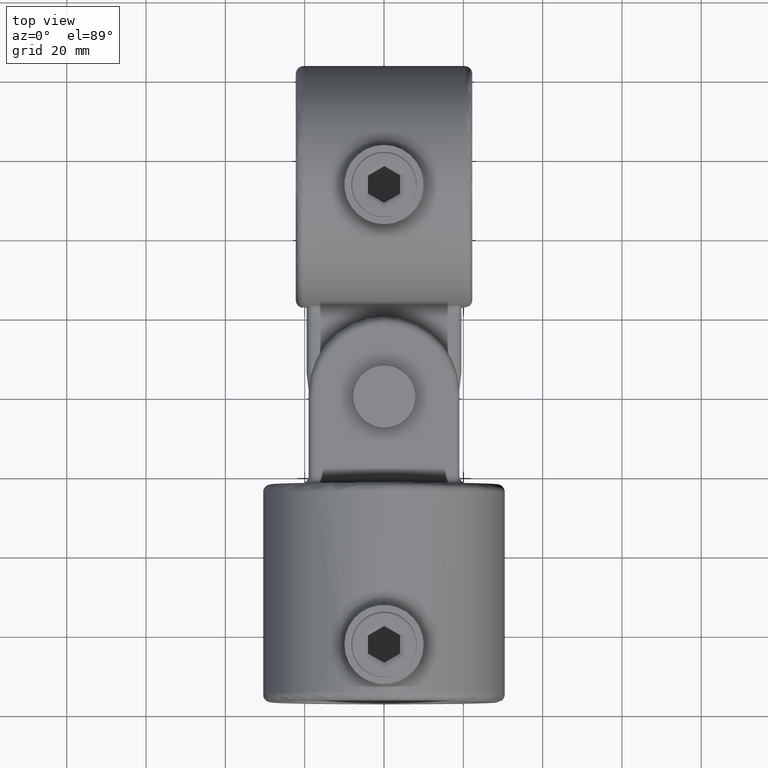
[diagram: clean part render]
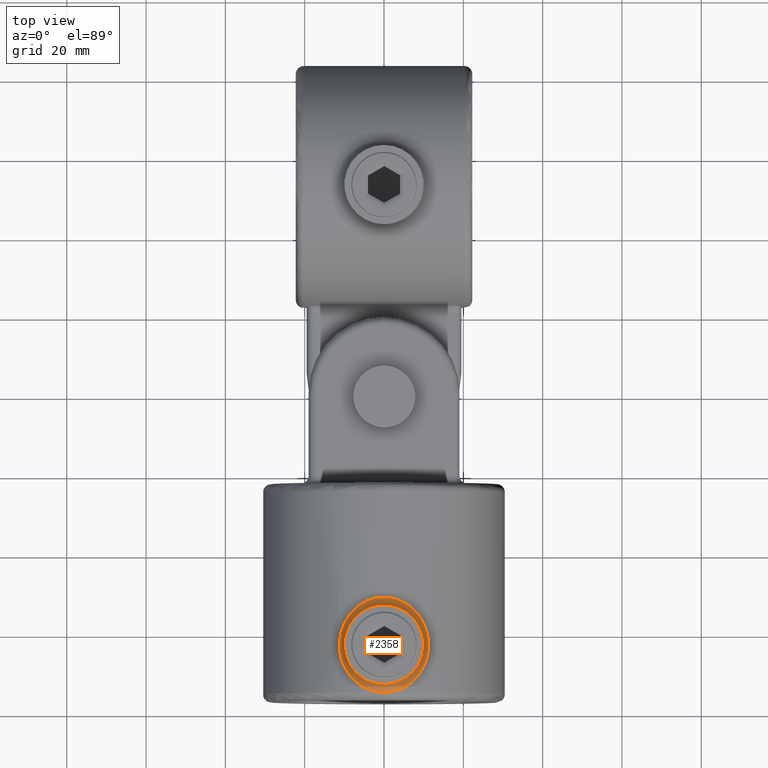
[diagram: same view with one face highlighted and labeled with its STEP entity id]
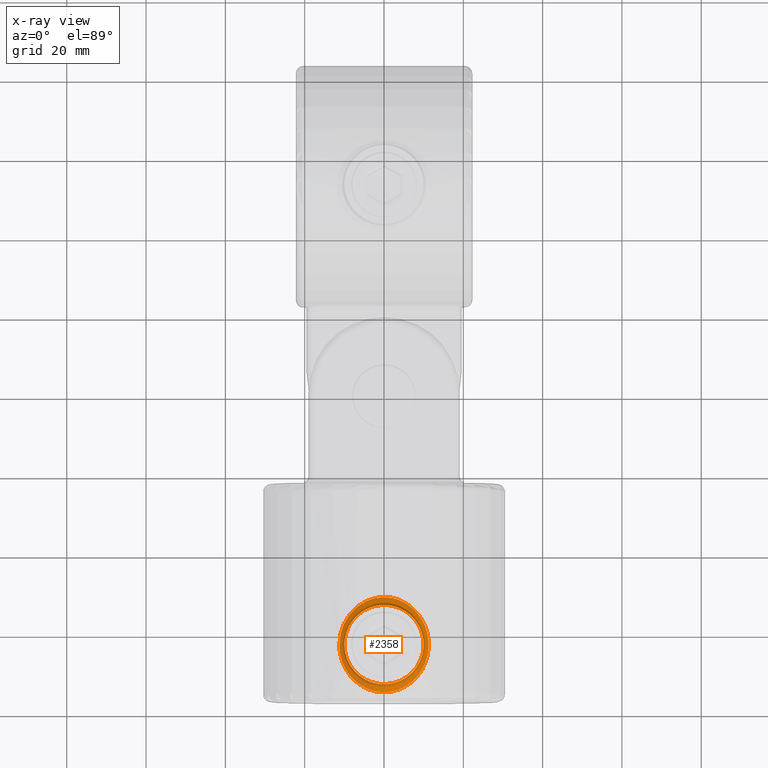
[diagram: x-ray of the same camera — body ghosted, the highlighted face saturated]
A machine part, top view. The second image highlights one B-rep face of the part: STEP entity #2358.
The next image is the same camera in x-ray: the body ghosted, the highlighted face saturated — about 0% of this face is hidden behind the body in this view.
In plain terms, the highlighted face is a freeform B-spline surface patch.
Its self-contained STEP definition (entity closure, byte-faithful):
#2 = CARTESIAN_POINT ( 'NONE',  ( -9.243968215091069140, 20.86469932400803273, 29.06616964552391735 ) ) ;
#19 = CARTESIAN_POINT ( 'NONE',  ( -9.933032982730786387, 12.67198421611785442, 30.23573659267955094 ) ) ;
#22 = CARTESIAN_POINT ( 'NONE',  ( 3.032111555076093978, 2.414852983618906990, 30.35806526818181794 ) ) ;
#35 = CARTESIAN_POINT ( 'NONE',  ( 9.824873629828857702, 19.87756647631716334, 28.87478173128807768 ) ) ;
#46 = CARTESIAN_POINT ( 'NONE',  ( 1.539353544089424597, 2.105527592974714590, 30.46355052869967395 ) ) ;
#50 = CARTESIAN_POINT ( 'NONE',  ( -10.88072185155222193, 17.11950014927325370, 28.49339085561273421 ) ) ;
#70 = CARTESIAN_POINT ( 'NONE',  ( -8.128381542641472279, 19.83402072333259269, 31.00259167786007453 ) ) ;
#93 = CARTESIAN_POINT ( 'NONE',  ( -5.853317288572460697, 5.860875669156445866, 29.95637070469016550 ) ) ;
#97 = CARTESIAN_POINT ( 'NONE',  ( -6.845712805342850871, 21.29661117872351284, 31.44593285321928988 ) ) ;
#100 = CARTESIAN_POINT ( 'NONE',  ( -2.614533402329467737, 4.342203113726298191, 32.35044701807686351 ) ) ;
#105 = CARTESIAN_POINT ( 'NONE',  ( -7.765260833497010573, 7.656510256769990974, 29.52345012723927553 ) ) ;
#114 = CARTESIAN_POINT ( 'NONE',  ( -3.245353187600716449, 4.535513310477721660, 32.26807114800728016 ) ) ;
#127 = CARTESIAN_POINT ( 'NONE',  ( 0.6042812338516254655, 23.98657952067852150, 30.49577145510413345 ) ) ;
#130 = CARTESIAN_POINT ( 'NONE',  ( -1.315883091347748168, 4.064847427296987448, 32.47102181399852583 ) ) ;
#138 = CARTESIAN_POINT ( 'NONE',  ( 2.605076708266246044, 23.67701246784753621, 32.35857618770624811 ) ) ;
#142 = CARTESIAN_POINT ( 'NONE',  ( 9.984020035899424883, 13.34471602824632441, 30.21111772675156715 ) ) ;
#153 = CARTESIAN_POINT ( 'NONE',  ( -0.7551700106236800547, 25.99914448498287101, 30.49970355649716325 ) ) ;
#156 = CARTESIAN_POINT ( 'NONE',  ( 9.868872699529433135, 12.35230418400704622, 30.26563674008294313 ) ) ;
#176 = CARTESIAN_POINT ( 'NONE',  ( 6.096056574390752658, 21.93377712714334393, 31.66755334169206293 ) ) ;
#180 = CARTESIAN_POINT ( 'NONE',  ( -6.843302424459897892, 21.29881938692922816, 31.44667997658956438 ) ) ;
#190 = CARTESIAN_POINT ( 'NONE',  ( -3.655484751139142396, 25.35711571959449628, 30.28225512550856280 ) ) ;
#204 = CARTESIAN_POINT ( 'NONE',  ( 10.89254134794235185, 17.14890022775901457, 28.48907788594209478 ) ) ;
#221 = CARTESIAN_POINT ( 'NONE',  ( 9.999737193288138926, 14.33625792644167873, 30.20360191840804731 ) ) ;
#226 = CARTESIAN_POINT ( 'NONE',  ( 6.103807043906742891, 21.92777132986375932, 31.66539131183671074 ) ) ;
#242 = CARTESIAN_POINT ( 'NONE',  ( 9.424336013752139252, 17.41549897950790537, 29.03949610354175803 ) ) ;
#261 = CARTESIAN_POINT ( 'NONE',  ( 9.909178584592577721, 15.39049317853638144, 28.87720646007744918 ) ) ;
#275 = CARTESIAN_POINT ( 'NONE',  ( 5.844398800048593579, 5.879178308581558987, 31.73598055903458004 ) ) ;
#278 = CARTESIAN_POINT ( 'NONE',  ( -0.7670867579778110068, 1.999999999999998224, 30.49999999999999289 ) ) ;
#297 = CARTESIAN_POINT ( 'NONE',  ( 5.589870289969797845, 5.696323953842715504, 30.00174678178514043 ) ) ;
#320 = CARTESIAN_POINT ( 'NONE',  ( 8.490178860390338755, 8.706416734731028839, 30.86263140759729140 ) ) ;
#333 = CARTESIAN_POINT ( 'NONE',  ( 3.030941800873076630, 4.446738308004146489, 30.36110170048718260 ) ) ;
#337 = CARTESIAN_POINT ( 'NONE',  ( 10.71134363683182400, 17.78295590648745517, 28.55868925382990753 ) ) ;
#351 = CARTESIAN_POINT ( 'NONE',  ( -0.7358301318822187964, 1.999478801592422084, 30.50018059974872742 ) ) ;
#356 = CARTESIAN_POINT ( 'NONE',  ( 0.3779548016671955835, 26.00019906655573010, 30.50006897832123087 ) ) ;
#376 = CARTESIAN_POINT ( 'NONE',  ( -5.038629552398040445, 5.350857907083879539, 30.09693372214898943 ) ) ;
#379 = CARTESIAN_POINT ( 'NONE',  ( -2.652514550686015937, 25.66948666633390630, 30.38675607796333722 ) ) ;
#395 = CARTESIAN_POINT ( 'NONE',  ( -11.26106436904438723, 13.19175005865275452, 28.34498949610054197 ) ) ;
#397 = CARTESIAN_POINT ( 'NONE',  ( -10.16881974270378919, 19.21345025795040939, 28.75635633840666827 ) ) ;
#409 = CARTESIAN_POINT ( 'NONE',  ( 2.655918393980812198, 25.66853894248058054, 30.38643598184116001 ) ) ;
#447 = CARTESIAN_POINT ( 'NONE',  ( -9.714648156356538777, 16.39989555051445436, 28.94293790424726964 ) ) ;
#474 = CARTESIAN_POINT ( 'NONE',  ( -7.932272795259867060, 20.09792152473874083, 31.07588381774887765 ) ) ;
#488 = CARTESIAN_POINT ( 'NONE',  ( -2.425938382193745912, 4.292017956559543101, 30.40902126201484279 ) ) ;
#500 = CARTESIAN_POINT ( 'NONE',  ( -9.739134296912128619, 11.70717094567973859, 30.32609237112129108 ) ) ;
#510 = CARTESIAN_POINT ( 'NONE',  ( -9.925192341616567049, 12.59809443847984944, 28.87210457215108761 ) ) ;
#515 = CARTESIAN_POINT ( 'NONE',  ( 4.453006632620951422, 22.97814129275433714, 32.06621772225852141 ) ) ;
#518 = CARTESIAN_POINT ( 'NONE',  ( 9.671286232142414008, 16.62843634803788717, 30.35770082774977041 ) ) ;
#533 = CARTESIAN_POINT ( 'NONE',  ( 3.019178305892411540, 23.55711015504564187, 30.36227173522066636 ) ) ;
#536 = CARTESIAN_POINT ( 'NONE',  ( -7.528316750415037895, 7.386310444514425200, 31.22433172470076812 ) ) ;
#549 = CARTESIAN_POINT ( 'NONE',  ( 3.233419850416193508, 23.48584657338296111, 32.27601678203924962 ) ) ;
#556 = CARTESIAN_POINT ( 'NONE',  ( -6.615820458410701654, 6.473555800180735176, 31.52053636002622738 ) ) ;
#569 = CARTESIAN_POINT ( 'NONE',  ( -1.323425284401383184, 23.93391114053046209, 32.47047710441780310 ) ) ;
#583 = CARTESIAN_POINT ( 'NONE',  ( -0.6705744629852793404, 23.99928707057250676, 32.49968411768632137 ) ) ;
#587 = CARTESIAN_POINT ( 'NONE',  ( -10.00000000000000533, 14.67042085534480123, 30.20347662107793951 ) ) ;
#599 = CARTESIAN_POINT ( 'NONE',  ( 9.015726547289684589, 18.34490367044389458, 29.16696224098524581 ) ) ;
#604 = CARTESIAN_POINT ( 'NONE',  ( 1.323011909690238852, 23.91769104178694860, 32.46363964678834435 ) ) ;
#622 = CARTESIAN_POINT ( 'NONE',  ( 9.999708843623745125, 14.35439558416219974, 28.84611742392011635 ) ) ;
#627 = CARTESIAN_POINT ( 'NONE',  ( -5.843697447757173258, 22.12144113231292408, 31.73619776136614590 ) ) ;
#642 = CARTESIAN_POINT ( 'NONE',  ( 11.24395328229990021, 13.22108662596344786, 28.35180853242880872 ) ) ;
#656 = CARTESIAN_POINT ( 'NONE',  ( 6.612349909142252180, 21.51560200003313739, 29.79702030169697480 ) ) ;
#670 = CARTESIAN_POINT ( 'NONE',  ( 9.641666268414764929, 11.25377305949032980, 28.96749256054473776 ) ) ;
#695 = CARTESIAN_POINT ( 'NONE',  ( 5.307075380255741770, 5.518272983283116773, 31.87163107662305350 ) ) ;
#700 = CARTESIAN_POINT ( 'NONE',  ( -7.578928348704146778, 5.090222142221667134, 29.54804856496079779 ) ) ;
#714 = CARTESIAN_POINT ( 'NONE',  ( 2.951271065109800418, 2.392707726962475689, 30.36554994667471874 ) ) ;
#717 = CARTESIAN_POINT ( 'NONE',  ( -10.57712353359535662, 9.862416789068833012, 28.60760787048300458 ) ) ;
#718 = EDGE_CURVE ( 'NONE', #1869, #1869, #3477, .T. ) ;
#729 = CARTESIAN_POINT ( 'NONE',  ( 8.658185364937464712, 8.985647776339853010, 30.79513573668955573 ) ) ;
#748 = CARTESIAN_POINT ( 'NONE',  ( 0.3366211951522407042, 4.000220446542505748, 32.49990232519428446 ) ) ;
#753 = CARTESIAN_POINT ( 'NONE',  ( 4.103338681587359815, 25.18237166942944683, 30.22476929305997118 ) ) ;
#768 = CARTESIAN_POINT ( 'NONE',  ( 9.750448749703682694, 7.982777331490288120, 28.90005046076233697 ) ) ;
#771 = CARTESIAN_POINT ( 'NONE',  ( 10.71218913228285352, 10.21929224433167427, 28.55838078788119816 ) ) ;
#785 = CARTESIAN_POINT ( 'NONE',  ( -3.902807240344861484, 4.784060603444623361, 30.26045133572615953 ) ) ;
#788 = CARTESIAN_POINT ( 'NONE',  ( -5.787429719565310826, 24.32485783493159559, 29.95247634929346958 ) ) ;
#799 = CARTESIAN_POINT ( 'NONE',  ( -11.26153624131425524, 13.99246478277244066, 28.34480201881053318 ) ) ;
#803 = CARTESIAN_POINT ( 'NONE',  ( 5.789137863697386699, 3.699306629790068968, 29.94738181258727749 ) ) ;
#818 = CARTESIAN_POINT ( 'NONE',  ( -5.295855884970327665, 5.511134968805895262, 31.87435581093785331 ) ) ;
#821 = CARTESIAN_POINT ( 'NONE',  ( -9.029439536706497904, 21.18168904846161738, 29.13375196157486613 ) ) ;
#840 = CARTESIAN_POINT ( 'NONE',  ( -9.999998028489436308, 13.99372065231036721, 30.20347756102761494 ) ) ;
#854 = CARTESIAN_POINT ( 'NONE',  ( -10.00000000000000178, 13.99999999999999822, 30.20347662107792530 ) ) ;
#868 = CARTESIAN_POINT ( 'NONE',  ( -7.519640387924853897, 20.60004598897471695, 31.22325956103462730 ) ) ;
#886 = CARTESIAN_POINT ( 'NONE',  ( -8.543547383195164713, 19.24547461994195530, 29.30995174042459084 ) ) ;
#890 = CARTESIAN_POINT ( 'NONE',  ( -5.306170360020612264, 5.517610849896361636, 31.87187422770790945 ) ) ;
#896 = CARTESIAN_POINT ( 'NONE',  ( -10.96821931842398712, 11.25082845005808352, 28.45969494522418231 ) ) ;
#901 = CARTESIAN_POINT ( 'NONE',  ( -7.318448435972737087, 20.82960721643040358, 29.63394174328092134 ) ) ;
#905 = CARTESIAN_POINT ( 'NONE',  ( 1.658878112089044343, 4.133079042536122572, 32.44129353512104075 ) ) ;
#910 = CARTESIAN_POINT ( 'NONE',  ( -9.999997815832156078, 13.99338199095946145, 28.84601775102658294 ) ) ;
#915 = EDGE_CURVE ( 'NONE', #4140, #4140, #1762, .T. ) ;
#917 = CARTESIAN_POINT ( 'NONE',  ( 6.571122588666621134, 23.75312316578482807, 29.78534196520226374 ) ) ;
#922 = CARTESIAN_POINT ( 'NONE',  ( 9.102496660580056798, 18.15334532493125508, 30.60986331209045375 ) ) ;
#939 = CARTESIAN_POINT ( 'NONE',  ( -6.105629327448422572, 21.92631780640063965, 31.66487375531614035 ) ) ;
#941 = CARTESIAN_POINT ( 'NONE',  ( 1.332077482115696654, 4.083513171062507219, 32.46310950476503621 ) ) ;
#957 = CARTESIAN_POINT ( 'NONE',  ( 5.580367149144492167, 22.31009088202797841, 30.00348367755407608 ) ) ;
#960 = CARTESIAN_POINT ( 'NONE',  ( 4.162126008069604310, 4.901368779502045747, 32.11604033567353866 ) ) ;
#973 = CARTESIAN_POINT ( 'NONE',  ( 0.6528650920635669097, 23.98418367810539209, 32.49297653594643975 ) ) ;
#975 = CARTESIAN_POINT ( 'NONE',  ( -6.604879153853596918, 21.51532381309690933, 31.52024382232365696 ) ) ;
#990 = CARTESIAN_POINT ( 'NONE',  ( -3.332560995477796162, 23.43647088803235690, 30.32625654769420720 ) ) ;
#1010 = CARTESIAN_POINT ( 'NONE',  ( 9.868722466718050867, 15.64872802278321018, 30.26570794393036579 ) ) ;
#1016 = CARTESIAN_POINT ( 'NONE',  ( -4.459212858328937656, 22.97437877312986743, 32.06472674210432672 ) ) ;
#1030 = CARTESIAN_POINT ( 'NONE',  ( 10.00025655206808217, 13.67955933350399889, 30.20335430575065416 ) ) ;
#1034 = CARTESIAN_POINT ( 'NONE',  ( -9.933379340573587513, 15.32680092401816196, 30.23557732068112358 ) ) ;
#1042 = CARTESIAN_POINT ( 'NONE',  ( 9.104420648648398284, 18.14913738768158424, 30.60903877074444424 ) ) ;
#1062 = CARTESIAN_POINT ( 'NONE',  ( 9.856500519366038660, 12.27462443019169491, 28.89520718866680582 ) ) ;
#1081 = CARTESIAN_POINT ( 'NONE',  ( 9.485203754702661527, 10.76621633595856586, 30.44333759508664983 ) ) ;
#1094 = CARTESIAN_POINT ( 'NONE',  ( -1.307264523227960273, 4.063839095309460525, 32.47147145059906848 ) ) ;
#1097 = CARTESIAN_POINT ( 'NONE',  ( -8.340587580369856369, 5.927624465590056957, 29.33860819879154036 ) ) ;
#1110 = CARTESIAN_POINT ( 'NONE',  ( 8.350714966581813670, 8.482306431702342664, 29.36286137955629982 ) ) ;
#1117 = CARTESIAN_POINT ( 'NONE',  ( -9.038308271229990254, 6.830894774893223165, 29.13100779426873288 ) ) ;
#1118 = ORIENTED_EDGE ( 'NONE', *, *, #915, .F. ) ;
#1137 = CARTESIAN_POINT ( 'NONE',  ( 5.853299092228011702, 5.879422340232376420, 29.95248563263556463 ) ) ;
#1141 = CARTESIAN_POINT ( 'NONE',  ( -2.651890083292779643, 2.330308292377218482, 30.38682503580911742 ) ) ;
#1154 = CARTESIAN_POINT ( 'NONE',  ( 8.531878459059099029, 8.766723368291700069, 29.31108620416283372 ) ) ;
#1157 = CARTESIAN_POINT ( 'NONE',  ( 11.17559517623976006, 12.47115895088103699, 28.37882037202822261 ) ) ;
#1172 = CARTESIAN_POINT ( 'NONE',  ( 6.103983348778923457, 6.072410578042320317, 31.66533207309560893 ) ) ;
#1174 = CARTESIAN_POINT ( 'NONE',  ( 10.17373442398051964, 8.797776059434015750, 28.75460375490738230 ) ) ;
#1190 = CARTESIAN_POINT ( 'NONE',  ( -8.538410916875612600, 8.746631334981380235, 29.31140732410387528 ) ) ;
#1193 = CARTESIAN_POINT ( 'NONE',  ( 5.798932846790121332, 24.31687779012050754, 29.95010788404846735 ) ) ;
#1211 = CARTESIAN_POINT ( 'NONE',  ( -9.999998028489436308, 13.99372065231036721, 30.20347756102761494 ) ) ;
#1213 = CARTESIAN_POINT ( 'NONE',  ( 7.000826883907540044, 4.592370185224562640, 29.68706601083024310 ) ) ;
#1225 = CARTESIAN_POINT ( 'NONE',  ( -8.667912118940449773, 8.971280242328518284, 30.79393132639754072 ) ) ;
#1227 = CARTESIAN_POINT ( 'NONE',  ( -4.105554508060962782, 25.18125088903324738, 30.22441334226354215 ) ) ;
#1263 = CARTESIAN_POINT ( 'NONE',  ( -11.18806541380962649, 15.57883902213603911, 28.37430715944625703 ) ) ;
#1294 = CARTESIAN_POINT ( 'NONE',  ( -7.302291195908765076, 20.83965363135161297, 31.29767985121476670 ) ) ;
#1297 = CARTESIAN_POINT ( 'NONE',  ( 9.983493821546606029, 14.66260686238623911, 30.21136826425483335 ) ) ;
#1305 = CARTESIAN_POINT ( 'NONE',  ( -4.997567006845190285, 3.239191238736637946, 30.08957747930015358 ) ) ;
#1313 = CARTESIAN_POINT ( 'NONE',  ( -7.709325805467396542, 22.75593341447653728, 29.51079852400500414 ) ) ;
#1317 = CARTESIAN_POINT ( 'NONE',  ( 6.604669757277896736, 6.484487477177232506, 31.52030810875761802 ) ) ;
#1328 = CARTESIAN_POINT ( 'NONE',  ( -4.764571505943934859, 22.82102916020753725, 30.14428525646801305 ) ) ;
#1332 = CARTESIAN_POINT ( 'NONE',  ( 8.962665931951347531, 18.44716342479838289, 30.66943414644754995 ) ) ;
#1340 = CARTESIAN_POINT ( 'NONE',  ( -5.027280162298201738, 22.66920343641752567, 31.94214411224343664 ) ) ;
#1343 = CARTESIAN_POINT ( 'NONE',  ( 9.104130772675061323, 9.850138758646739490, 30.60916573495806858 ) ) ;
#1354 = CARTESIAN_POINT ( 'NONE',  ( -4.001991899031012601, 25.22352092747606633, 30.23823605150816718 ) ) ;
#1357 = CARTESIAN_POINT ( 'NONE',  ( 9.673045341635811312, 11.37885649670039356, 30.35688723799461997 ) ) ;
#1375 = CARTESIAN_POINT ( 'NONE',  ( 5.014770546400169060, 24.77376955179402174, 30.09291201581788400 ) ) ;
#1378 = CARTESIAN_POINT ( 'NONE',  ( -0.6685315067394865807, 23.99958732815111873, 32.49981715465725074 ) ) ;
#1393 = CARTESIAN_POINT ( 'NONE',  ( -6.367645905428595654, 21.72377907171450317, 29.84943641236525380 ) ) ;
#1407 = CARTESIAN_POINT ( 'NONE',  ( 10.25855114796074474, 9.033970717497625813, 28.72341642561990938 ) ) ;
#1410 = CARTESIAN_POINT ( 'NONE',  ( -8.122269497224023027, 19.84247509188513447, 31.00489619376928374 ) ) ;
#1420 = CARTESIAN_POINT ( 'NONE',  ( 9.984384745095368885, 13.35090552164946232, 30.21094351821547619 ) ) ;
#1443 = CARTESIAN_POINT ( 'NONE',  ( 7.706584406929347431, 22.75873566346964694, 29.51152379901408196 ) ) ;
#1449 = CARTESIAN_POINT ( 'NONE',  ( -7.926598416882457698, 20.10523218298213521, 31.07796279004013584 ) ) ;
#1463 = CARTESIAN_POINT ( 'NONE',  ( 8.528465912464014309, 19.23875268846249753, 29.31206691994302105 ) ) ;
#1466 = CARTESIAN_POINT ( 'NONE',  ( -1.192622389734054877E-15, 1.999999999999997335, 30.49999999999999645 ) ) ;
#1483 = CARTESIAN_POINT ( 'NONE',  ( 9.021112916798246673, 9.666212897047179453, 29.16531025058173299 ) ) ;
#1503 = CARTESIAN_POINT ( 'NONE',  ( -2.566355456052150874, 2.309029872086307833, 30.39403791276410871 ) ) ;
#1510 = CARTESIAN_POINT ( 'NONE',  ( -5.129936803753779806, 3.309895335209842582, 30.06733246023922135 ) ) ;
#1527 = CARTESIAN_POINT ( 'NONE',  ( 6.874024325193174079, 4.486892693570804447, 29.71669625339867338 ) ) ;
#1528 = CARTESIAN_POINT ( 'NONE',  ( -8.582650906545444158, 6.221008199024060659, 29.26849389585848016 ) ) ;
#1543 = CARTESIAN_POINT ( 'NONE',  ( 7.438324992049118123, 4.981751542668040322, 29.58049303092772675 ) ) ;
#1559 = CARTESIAN_POINT ( 'NONE',  ( 4.681217569410002000, 3.078735364629634486, 30.14059724893686365 ) ) ;
#1564 = CARTESIAN_POINT ( 'NONE',  ( 9.835318264099527141, 8.104512378909102921, 28.87365579794516890 ) ) ;
#1583 = CARTESIAN_POINT ( 'NONE',  ( 4.455078414042734636, 5.041281391550790580, 32.05919136870942054 ) ) ;
#1586 = CARTESIAN_POINT ( 'NONE',  ( 7.561927170432106493, 5.099125343656070619, 29.54912389325469135 ) ) ;
#1601 = CARTESIAN_POINT ( 'NONE',  ( -4.143216307582364699, 4.892846466918960857, 32.11952683136517095 ) ) ;
#1605 = CARTESIAN_POINT ( 'NONE',  ( -7.016690753439630335, 23.41972362816973074, 29.68857074842919985 ) ) ;
#1620 = CARTESIAN_POINT ( 'NONE',  ( -6.110716803383021478, 6.057279028086657746, 31.66895753244996925 ) ) ;
#1622 = CARTESIAN_POINT ( 'NONE',  ( -3.026671543139946685, 25.56559137170439300, 30.35164926310239153 ) ) ;
#1635 = CARTESIAN_POINT ( 'NONE',  ( -6.366234022201572529, 6.253458304704497372, 29.85272899055560458 ) ) ;
#1641 = CARTESIAN_POINT ( 'NONE',  ( 11.26157573034706871, 13.61910751566457556, 28.34478632961044653 ) ) ;
#1658 = CARTESIAN_POINT ( 'NONE',  ( 0.3835433789889063916, 1.999999999999997113, 30.50000000000000000 ) ) ;
#1661 = CARTESIAN_POINT ( 'NONE',  ( -8.932959516955174095, 21.31750582958979123, 29.16352173646217238 ) ) ;
#1676 = CARTESIAN_POINT ( 'NONE',  ( -11.26153624131425524, 13.99246478277244066, 28.34480201881053318 ) ) ;
#1706 = CARTESIAN_POINT ( 'NONE',  ( 6.846402141936135166, 6.703946357808736600, 31.44573203978728060 ) ) ;
#1717 = CARTESIAN_POINT ( 'NONE',  ( -9.411955240448254045, 10.59948769740053187, 29.04228405467071994 ) ) ;
#1725 = CARTESIAN_POINT ( 'NONE',  ( 7.535332654316970746, 7.393847871556056717, 31.22196392659375874 ) ) ;
#1733 = CARTESIAN_POINT ( 'NONE',  ( -3.245990557664401699, 23.46426309946616229, 32.26797677329054892 ) ) ;
#1736 = CARTESIAN_POINT ( 'NONE',  ( 8.483674080620842162, 19.30400983585766639, 30.86521074971415146 ) ) ;
#1749 = CARTESIAN_POINT ( 'NONE',  ( -2.615461681360148116, 23.65754062428421989, 32.35033691420422031 ) ) ;
#1755 = CARTESIAN_POINT ( 'NONE',  ( 4.460125296728114641, 5.043808137761853772, 32.05817500894819716 ) ) ;
#1762 = B_SPLINE_CURVE_WITH_KNOTS ( 'NONE', 3,
 ( #1466, #278, #3915, #1141, #2276, #4283, #2752, #4264, #1510, #2705, #3947, #2681, #700, #1097, #1528, #1117, #1871, #2307, #3096, #717, #3491, #4297, #1908, #1924, #2327, #2035, #3230, #4795, #4807, #3640, #2018, #397, #2774, #2, #821, #5170, #4375, #4425, #1605, #788, #4833, #1227, #3166, #1622, #379, #2793, #1983, #356, #3182, #4412, #2828, #409, #2406, #3604, #753, #3199, #1193, #4041, #1967, #3986, #2436, #4761, #35, #4002, #2390, #337, #2366, #4779, #4398, #1641, #3565, #1157, #3969, #2001, #771, #1174, #1564, #2808, #3586, #4362, #1586, #1213, #3212, #5182, #803, #3624, #4021, #2425, #22, #2458, #46, #3298, #1658, #2850 ),
 .UNSPECIFIED., .T., .F.,
 ( 4, 2, 2, 2, 2, 2, 2, 2, 2, 2, 2, 2, 2, 2, 2, 2, 2, 2, 2, 2, 2, 2, 2, 2, 2, 2, 2, 2, 2, 2, 2, 2, 2, 2, 2, 2, 2, 2, 2, 2, 2, 2, 2, 2, 2, 2, 4 ),
 ( 0.05508177351297097873, 0.05737677634430404100, 0.05852427775997056519, 0.05967177917563709633, 0.06081928059130362746, 0.06196678200697015859, 0.06426178483830322086, 0.06540928625396974505, 0.06655678766963626924, 0.06885179050096933151, 0.06999929191663585570, 0.07114679333230237990, 0.07344179616363544216, 0.07573679899496849055, 0.07688430041063501474, 0.07803180182630153894, 0.08032680465763458733, 0.08147430607330112540, 0.08262180748896766347, 0.08491681032030073961, 0.08721181315163381575, 0.08835931456730033995, 0.08950681598296689190, 0.09180181881429995416, 0.09294932022996649224, 0.09409682164563303031, 0.09524432306129956838, 0.09639182447696612033, 0.09868682730829918259, 0.1009818301396322587, 0.1032768329709653349, 0.1044243343866318730, 0.1055718358022984110, 0.1078668386336314733, 0.1101618414649645494, 0.1113093428806311014, 0.1124568442962976256, 0.1147518471276307156, 0.1170468499589638056, 0.1193418527902968818, 0.1204893542059634060, 0.1216368556216299579, 0.1227843570372964821, 0.1239318584529630340, 0.1262268612842961102, 0.1273743626999626621, 0.1285218641156291863 ),
 .UNSPECIFIED. ) ;
#1770 = CARTESIAN_POINT ( 'NONE',  ( 1.313445985264208415, 23.91892212845602472, 32.46418175993299116 ) ) ;
#1777 = CARTESIAN_POINT ( 'NONE',  ( -4.155701816738133658, 4.898536392276135132, 32.11720217377955322 ) ) ;
#1788 = CARTESIAN_POINT ( 'NONE',  ( 5.660269043759444507, 24.40328564793344057, 29.97659664787772371 ) ) ;
#1801 = CARTESIAN_POINT ( 'NONE',  ( -4.455068466075069900, 22.97643997154993301, 32.06556023329525829 ) ) ;
#1822 = CARTESIAN_POINT ( 'NONE',  ( 10.10001557170453523, 8.677592054301840108, 28.77974726967791597 ) ) ;
#1825 = CARTESIAN_POINT ( 'NONE',  ( -7.298404168031843220, 20.84374525502578734, 31.29897703565869804 ) ) ;
#1837 = CARTESIAN_POINT ( 'NONE',  ( 9.480028556556725050, 17.24843411576082630, 30.44565650939712143 ) ) ;
#1840 = CARTESIAN_POINT ( 'NONE',  ( 5.843744440065966828, 22.12129484220157494, 31.73615485409790082 ) ) ;
#1853 = CARTESIAN_POINT ( 'NONE',  ( 9.637430076023147052, 16.76189382709931053, 28.96890246477924080 ) ) ;
#1864 = CARTESIAN_POINT ( 'NONE',  ( 9.676172925699452421, 11.39085019812120869, 30.35544465474401932 ) ) ;
#1869 = VERTEX_POINT ( 'NONE', #854 ) ;
#1871 = CARTESIAN_POINT ( 'NONE',  ( -9.250034192547653689, 7.144689301434998363, 29.06423092442859257 ) ) ;
#1886 = CARTESIAN_POINT ( 'NONE',  ( 8.867760787886389551, 9.360025726551462810, 29.21209619002679148 ) ) ;
#1905 = CARTESIAN_POINT ( 'NONE',  ( 6.847699832646788387, 6.705110407919874227, 31.44533407933957392 ) ) ;
#1908 = CARTESIAN_POINT ( 'NONE',  ( -10.98703238002726756, 11.33907765140012636, 28.45242499477747344 ) ) ;
#1920 = CARTESIAN_POINT ( 'NONE',  ( 7.538985233259818841, 7.397778382440552747, 31.22073015784426175 ) ) ;
#1924 = CARTESIAN_POINT ( 'NONE',  ( -11.19189644310773879, 12.46404716867331253, 28.37274975076568140 ) ) ;
#1942 = CARTESIAN_POINT ( 'NONE',  ( 3.655130944769545032, 2.622197403837508656, 30.28807718551444950 ) ) ;
#1964 = CARTESIAN_POINT ( 'NONE',  ( 5.976583351327862559, 3.821927579968514621, 29.91029993364734807 ) ) ;
#1967 = CARTESIAN_POINT ( 'NONE',  ( 7.583850922601549804, 22.90494306336260522, 29.54677012747194098 ) ) ;
#1980 = CARTESIAN_POINT ( 'NONE',  ( 0.7545481351892033839, 2.020336009224877660, 30.49293869841714510 ) ) ;
#1983 = CARTESIAN_POINT ( 'NONE',  ( -0.7724875422416159765, 25.99959753282132269, 30.49986054156486048 ) ) ;
#1998 = CARTESIAN_POINT ( 'NONE',  ( -9.761402570837670822, 7.965536290714452683, 28.89892016741031355 ) ) ;
#2001 = CARTESIAN_POINT ( 'NONE',  ( 10.91622459963183189, 10.95225648255365769, 28.47995743206094232 ) ) ;
#2015 = CARTESIAN_POINT ( 'NONE',  ( -3.540658850745326713, 4.642103775465039384, 32.22314648948603377 ) ) ;
#2018 = CARTESIAN_POINT ( 'NONE',  ( -10.57467990496024690, 18.14458803361595685, 28.60851055390485698 ) ) ;
#2033 = CARTESIAN_POINT ( 'NONE',  ( -4.190174285556481415, 4.910497041892342374, 30.22318025817022047 ) ) ;
#2035 = CARTESIAN_POINT ( 'NONE',  ( -11.26143366233199927, 14.77657150884971315, 28.34484277397891105 ) ) ;
#2080 = CARTESIAN_POINT ( 'NONE',  ( -10.66387996175693686, 17.87760661032992715, 28.57525318562899841 ) ) ;
#2093 = EDGE_LOOP ( 'NONE', ( #3542 ) ) ;
#2096 = CARTESIAN_POINT ( 'NONE',  ( -9.469292315847052777, 17.23133884198020738, 30.44904027961508675 ) ) ;
#2100 = CARTESIAN_POINT ( 'NONE',  ( 7.944190614601239986, 7.891963555208854508, 31.07374604932628515 ) ) ;
#2104 = CARTESIAN_POINT ( 'NONE',  ( -7.319932213741031646, 7.149354453370440510, 29.63671885948299689 ) ) ;
#2108 = CARTESIAN_POINT ( 'NONE',  ( -9.291518904385116073, 17.71719374926580670, 29.08091840842208242 ) ) ;
#2111 = CARTESIAN_POINT ( 'NONE',  ( -10.00000000000000178, 13.32957914465518456, 30.20347662107792175 ) ) ;
#2122 = CARTESIAN_POINT ( 'NONE',  ( -3.640423276086067528, 2.637407173710236918, 30.28406652417214673 ) ) ;
#2128 = CARTESIAN_POINT ( 'NONE',  ( 0.3192113434047839093, 24.00034785023867556, 32.50015412428268746 ) ) ;
#2132 = CARTESIAN_POINT ( 'NONE',  ( 7.941245788260929750, 20.11208641224245497, 31.07485423606355113 ) ) ;
#2136 = CARTESIAN_POINT ( 'NONE',  ( -8.873441179763728925, 9.332320275098204831, 29.21132673765307430 ) ) ;
#2145 = CARTESIAN_POINT ( 'NONE',  ( 0.2956429167920656687, 24.00029647939737387, 30.50009326624519801 ) ) ;
#2148 = CARTESIAN_POINT ( 'NONE',  ( -3.553458559826015772, 4.646956128833685362, 32.22111563649053068 ) ) ;
#2157 = CARTESIAN_POINT ( 'NONE',  ( -5.661490890710872748, 24.40304412398916867, 29.97647370564223124 ) ) ;
#2159 = CARTESIAN_POINT ( 'NONE',  ( -0.6599121890357914078, 3.999829336728657925, 32.50007561695498026 ) ) ;
#2176 = CARTESIAN_POINT ( 'NONE',  ( 5.835013227685628578, 22.12760263816786122, 31.73847914344983678 ) ) ;
#2182 = CARTESIAN_POINT ( 'NONE',  ( 6.606596212816284286, 21.51391410442366947, 31.51974724648361814 ) ) ;
#2196 = CARTESIAN_POINT ( 'NONE',  ( -6.579917131902529803, 23.74652548753785553, 29.78342751044549175 ) ) ;
#2202 = CARTESIAN_POINT ( 'NONE',  ( 5.037571291151973440, 22.66267807699490433, 31.93965076670681569 ) ) ;
#2214 = CARTESIAN_POINT ( 'NONE',  ( 9.555351337983704951, 20.36244285013862410, 28.96534589885368405 ) ) ;
#2217 = CARTESIAN_POINT ( 'NONE',  ( -9.464465942595168713, 17.24549678703396083, 30.45120409952757967 ) ) ;
#2232 = CARTESIAN_POINT ( 'NONE',  ( 7.941096156139415996, 20.11247593119090027, 31.07492688144650117 ) ) ;
#2254 = CARTESIAN_POINT ( 'NONE',  ( 8.655016255857095331, 19.01973131539547879, 30.79641502561089439 ) ) ;
#2258 = CARTESIAN_POINT ( 'NONE',  ( -9.738914675341320049, 16.29382811046269808, 30.32619432085260414 ) ) ;
#2273 = CARTESIAN_POINT ( 'NONE',  ( 6.600880206728858113, 21.51898302683087394, 31.52148389406428208 ) ) ;
#2276 = CARTESIAN_POINT ( 'NONE',  ( -3.026050870594106268, 2.434238432205750424, 30.35170686832319120 ) ) ;
#2287 = CARTESIAN_POINT ( 'NONE',  ( 8.480827181672335513, 21.93340054238463210, 29.30207315119892186 ) ) ;
#2300 = CARTESIAN_POINT ( 'NONE',  ( -2.278867549798263337, 4.257524893289470036, 32.38708957920881204 ) ) ;
#2307 = CARTESIAN_POINT ( 'NONE',  ( -9.839138301364332762, 8.111895203841827495, 28.87233909218083383 ) ) ;
#2323 = CARTESIAN_POINT ( 'NONE',  ( 1.865644565191857396, 2.159279013290680727, 30.44504929331381504 ) ) ;
#2327 = CARTESIAN_POINT ( 'NONE',  ( -11.26164302735372402, 13.22688354344390405, 28.34475959215640728 ) ) ;
#2345 = CARTESIAN_POINT ( 'NONE',  ( 0.3790872536175295959, 2.000264535982780867, 30.49990833599690276 ) ) ;
#2358 = ADVANCED_FACE ( 'NONE', ( #2441, #4687 ), #4265, .F. ) ;
#2364 = CARTESIAN_POINT ( 'NONE',  ( 4.156818880006087902, 4.898946137065228967, 32.11702985553056777 ) ) ;
#2366 = CARTESIAN_POINT ( 'NONE',  ( 10.91596221755033014, 17.04969053029671855, 28.48006098479568493 ) ) ;
#2386 = CARTESIAN_POINT ( 'NONE',  ( -0.6051598574136466402, 3.999629809428741023, 30.50011645426948448 ) ) ;
#2390 = CARTESIAN_POINT ( 'NONE',  ( 10.30872114149041607, 18.84585204430269201, 28.70541189441056318 ) ) ;
#2403 = CARTESIAN_POINT ( 'NONE',  ( -3.987326582687846788, 2.770524530612061387, 30.24018362875870380 ) ) ;
#2406 = CARTESIAN_POINT ( 'NONE',  ( 3.022753520854180920, 25.56669538060802793, 30.35202196198194713 ) ) ;
#2420 = CARTESIAN_POINT ( 'NONE',  ( -8.975293499897071925, 9.542038081288145790, 30.66518161504536621 ) ) ;
#2425 = CARTESIAN_POINT ( 'NONE',  ( 3.752167550747611102, 2.656804377797766126, 30.27652092646351534 ) ) ;
#2436 = CARTESIAN_POINT ( 'NONE',  ( 9.047916496254591934, 21.18637905156921875, 29.13001736175059264 ) ) ;
#2441 = FACE_OUTER_BOUND ( 'NONE', #5192, .T. ) ;
#2458 = CARTESIAN_POINT ( 'NONE',  ( 1.916957069334768615, 2.168212632071715884, 30.44198141418739212 ) ) ;
#2460 = CARTESIAN_POINT ( 'NONE',  ( -9.934757539615352684, 15.31569918510533412, 30.23491746519150070 ) ) ;
#2478 = CARTESIAN_POINT ( 'NONE',  ( -9.153808137229550113, 21.00082486793115422, 29.09473988252499410 ) ) ;
#2490 = CARTESIAN_POINT ( 'NONE',  ( -9.766815143581446534, 20.02508675916110192, 28.89712253722002089 ) ) ;
#2500 = CARTESIAN_POINT ( 'NONE',  ( -9.466841878499373308, 10.76159838222277365, 30.45013723339149436 ) ) ;
#2507 = CARTESIAN_POINT ( 'NONE',  ( -6.614884349897902638, 21.51331829561642905, 29.79645968340732765 ) ) ;
#2512 = CARTESIAN_POINT ( 'NONE',  ( -6.118316857978434165, 6.063270373837529092, 31.66679886347433026 ) ) ;
#2520 = CARTESIAN_POINT ( 'NONE',  ( -5.963948473478554391, 3.813361962740521083, 29.91285699205006665 ) ) ;
#2531 = CARTESIAN_POINT ( 'NONE',  ( -8.973349204205849361, 9.538142280271097562, 30.66600392576714285 ) ) ;
#2535 = CARTESIAN_POINT ( 'NONE',  ( -5.013343766451781924, 5.341303086401500089, 31.94026640188621968 ) ) ;
#2541 = CARTESIAN_POINT ( 'NONE',  ( 1.639450088948747775, 23.87015461609153277, 32.44271180085620188 ) ) ;
#2546 = CARTESIAN_POINT ( 'NONE',  ( 6.847880192300171309, 21.29457581640100017, 31.44525236267082491 ) ) ;
#2556 = CARTESIAN_POINT ( 'NONE',  ( 1.521541031567046343, 23.88903999692789526, 30.46519627894952364 ) ) ;
#2559 = CARTESIAN_POINT ( 'NONE',  ( 5.846492498496490775, 5.880716970900487617, 31.73541619692676363 ) ) ;
#2578 = CARTESIAN_POINT ( 'NONE',  ( -4.201061370413349039, 23.09996448539473590, 30.22586466515167913 ) ) ;
#2584 = CARTESIAN_POINT ( 'NONE',  ( 5.033486903033499438, 5.353029436113183159, 31.93568963022464047 ) ) ;
#2597 = CARTESIAN_POINT ( 'NONE',  ( -3.037767032717782367, 23.53498459327544623, 30.35612452281572615 ) ) ;
#2600 = CARTESIAN_POINT ( 'NONE',  ( 1.649941697202754964, 23.86843297616704618, 32.44195629821442850 ) ) ;
#2612 = CARTESIAN_POINT ( 'NONE',  ( -1.223070610848955075, 23.94457938136078923, 30.48245406069612784 ) ) ;
#2625 = CARTESIAN_POINT ( 'NONE',  ( 8.942895979296872966, 21.33497111761386833, 29.16262368912753544 ) ) ;
#2643 = CARTESIAN_POINT ( 'NONE',  ( 8.345077115314948557, 19.52629484998595188, 29.36445454911894970 ) ) ;
#2663 = CARTESIAN_POINT ( 'NONE',  ( 9.983345221015714088, 14.66430269393021213, 30.21143881810534282 ) ) ;
#2666 = CARTESIAN_POINT ( 'NONE',  ( -10.00000000000000355, 13.99999999999999467, 30.20347662107793241 ) ) ;
#2678 = CARTESIAN_POINT ( 'NONE',  ( 10.25297833053340923, 18.97896486521551651, 28.72540561579189244 ) ) ;
#2681 = CARTESIAN_POINT ( 'NONE',  ( -7.021466357183424378, 4.584672624921902084, 29.68736401327926444 ) ) ;
#2699 = CARTESIAN_POINT ( 'NONE',  ( 8.964574740259445562, 18.44335555568253682, 30.66863210612551782 ) ) ;
#2705 = CARTESIAN_POINT ( 'NONE',  ( -5.784727487260367340, 3.696432726108585864, 29.94824971151399495 ) ) ;
#2719 = CARTESIAN_POINT ( 'NONE',  ( 8.951767422000143526, 6.677594597399026277, 29.15987162857530279 ) ) ;
#2735 = CARTESIAN_POINT ( 'NONE',  ( 0.6700222512093545468, 4.016946674145605023, 32.49247566211145966 ) ) ;
#2750 = CARTESIAN_POINT ( 'NONE',  ( 7.711563503789883534, 5.246132489632051588, 29.51023659778580210 ) ) ;
#2752 = CARTESIAN_POINT ( 'NONE',  ( -4.104586597752462929, 2.818307035435443364, 30.22455565091248886 ) ) ;
#2769 = CARTESIAN_POINT ( 'NONE',  ( 6.616906632828768231, 6.488317738543607049, 29.79603805134776451 ) ) ;
#2774 = CARTESIAN_POINT ( 'NONE',  ( -9.836646768329295298, 19.89331587946755775, 28.87322367265352696 ) ) ;
#2790 = CARTESIAN_POINT ( 'NONE',  ( -6.610300974207665270, 6.468511551574398055, 31.52224497254129432 ) ) ;
#2793 = CARTESIAN_POINT ( 'NONE',  ( -1.530046113451919876, 25.91657769210475593, 30.47083970657329033 ) ) ;
#2807 = CARTESIAN_POINT ( 'NONE',  ( -10.66112039232903008, 10.11391805870893279, 28.57628263455623241 ) ) ;
#2808 = CARTESIAN_POINT ( 'NONE',  ( 9.047786223290401608, 6.813758281663115035, 29.13003688552382897 ) ) ;
#2822 = CARTESIAN_POINT ( 'NONE',  ( -3.320033721605303523, 4.559110297479814555, 30.32758826533425278 ) ) ;
#2828 = CARTESIAN_POINT ( 'NONE',  ( 1.911303686990879269, 25.83284641643756885, 30.44234406891347788 ) ) ;
#2850 = CARTESIAN_POINT ( 'NONE',  ( -1.192622389734054877E-15, 1.999999999999997335, 30.49999999999999645 ) ) ;
#2853 = CARTESIAN_POINT ( 'NONE',  ( 0.000000000000000000, 2.000000000000001776, 30.50000000000000000 ) ) ;
#2867 = CARTESIAN_POINT ( 'NONE',  ( -10.00041702575146019, 14.66098292241905732, 30.20327779014759528 ) ) ;
#2882 = CARTESIAN_POINT ( 'NONE',  ( -9.661843174113267096, 16.59958345768911059, 30.36180992826545122 ) ) ;
#2902 = CARTESIAN_POINT ( 'NONE',  ( -9.414641987812444768, 17.39316526209633906, 29.04141919045093445 ) ) ;
#2913 = CARTESIAN_POINT ( 'NONE',  ( -9.354013013565966261, 10.44897620234198676, 30.50048322408892076 ) ) ;
#2920 = CARTESIAN_POINT ( 'NONE',  ( -8.979895809978314603, 18.44851922962542545, 30.66322815202508423 ) ) ;
#2924 = CARTESIAN_POINT ( 'NONE',  ( -7.945799578544582076, 7.894045453117306543, 31.07315217005147190 ) ) ;
#2932 = CARTESIAN_POINT ( 'NONE',  ( -11.18612329741005595, 12.40638105933967239, 28.37507587909169970 ) ) ;
#2940 = CARTESIAN_POINT ( 'NONE',  ( 9.480999725888500151, 10.75395225057885540, 30.44523232052593187 ) ) ;
#2953 = CARTESIAN_POINT ( 'NONE',  ( -6.606483606716607504, 21.51396019462751852, 31.51976952165906454 ) ) ;
#2957 = CARTESIAN_POINT ( 'NONE',  ( -10.00000000000000355, 13.99999999999999467, 30.20347662107793241 ) ) ;
#2970 = CARTESIAN_POINT ( 'NONE',  ( -5.588225518226451527, 22.30492075177141231, 30.00207545868484260 ) ) ;
#2987 = CARTESIAN_POINT ( 'NONE',  ( -2.438197141346115426, 23.70493796420268140, 30.40808317787050896 ) ) ;
#2990 = CARTESIAN_POINT ( 'NONE',  ( 9.918639406753971599, 12.68446000453588596, 30.24211355031132697 ) ) ;
#3000 = CARTESIAN_POINT ( 'NONE',  ( 7.433606632670157310, 23.02277963207282596, 29.58170026963786015 ) ) ;
#3003 = CARTESIAN_POINT ( 'NONE',  ( -9.351785023166955924, 17.55682017554366325, 30.50146622436773924 ) ) ;
#3021 = CARTESIAN_POINT ( 'NONE',  ( 9.672338628117399750, 16.62408352304054304, 30.35721414055433343 ) ) ;
#3026 = CARTESIAN_POINT ( 'NONE',  ( -1.323432631844460028, 23.93402501100975499, 32.47052500719338752 ) ) ;
#3042 = CARTESIAN_POINT ( 'NONE',  ( 11.24278261821094560, 14.79716323272723066, 28.35227335232371360 ) ) ;
#3044 = CARTESIAN_POINT ( 'NONE',  ( 2.617710640622799456, 23.67371175087662039, 32.35714969931480312 ) ) ;
#3058 = CARTESIAN_POINT ( 'NONE',  ( 7.760378159800580100, 20.34969525203679197, 29.52474030924019033 ) ) ;
#3062 = CARTESIAN_POINT ( 'NONE',  ( -9.658212025451899052, 16.61310264716253826, 30.36347660962142569 ) ) ;
#3073 = CARTESIAN_POINT ( 'NONE',  ( 9.911091664239387811, 12.62292826631173526, 28.87655283457011279 ) ) ;
#3091 = CARTESIAN_POINT ( 'NONE',  ( 10.89685935680037865, 10.86902023765935077, 28.48741729156207825 ) ) ;
#3096 = CARTESIAN_POINT ( 'NONE',  ( -10.17089269066772772, 8.790884801295870687, 28.75562593893513608 ) ) ;
#3111 = CARTESIAN_POINT ( 'NONE',  ( 1.537605345601460227, 4.113441723882035994, 30.46442129354246475 ) ) ;
#3129 = CARTESIAN_POINT ( 'NONE',  ( 4.207171349428995732, 4.918343562289845039, 30.22088612919464623 ) ) ;
#3145 = CARTESIAN_POINT ( 'NONE',  ( -2.930806996749743654, 2.406762046286893497, 30.36095744895664694 ) ) ;
#3162 = CARTESIAN_POINT ( 'NONE',  ( 6.605070006695790141, 6.484792952156716694, 31.52019749217022948 ) ) ;
#3166 = CARTESIAN_POINT ( 'NONE',  ( -3.752499628723214631, 25.32148046753423287, 30.27048232448350618 ) ) ;
#3179 = CARTESIAN_POINT ( 'NONE',  ( 0.3117605958420758272, 4.000187886910938850, 30.49994089467782743 ) ) ;
#3182 = CARTESIAN_POINT ( 'NONE',  ( 0.7665150563471406775, 25.97921660147965639, 30.49278177436089621 ) ) ;
#3197 = CARTESIAN_POINT ( 'NONE',  ( -7.945657755511750686, 7.893671664973607172, 31.07322139844053766 ) ) ;
#3199 = CARTESIAN_POINT ( 'NONE',  ( 5.148716937592596743, 24.70297726480269773, 30.07053345909573494 ) ) ;
#3210 = CARTESIAN_POINT ( 'NONE',  ( -9.999579031227410653, 13.32645838220167178, 30.20367733190763815 ) ) ;
#3212 = CARTESIAN_POINT ( 'NONE',  ( 6.709174928523376380, 4.354062510185396917, 29.75454535387024890 ) ) ;
#3228 = CARTESIAN_POINT ( 'NONE',  ( -4.757484561273121138, 5.193632081323959149, 30.14149936941000618 ) ) ;
#3230 = CARTESIAN_POINT ( 'NONE',  ( -11.19156694264659890, 15.53930802058691008, 28.37288248665516832 ) ) ;
#3243 = CARTESIAN_POINT ( 'NONE',  ( -9.999997815832156078, 13.99338199095946145, 28.84601775102658294 ) ) ;
#3267 = CARTESIAN_POINT ( 'NONE',  ( -9.626197035887068765, 16.73392924404015503, 28.97241983451193192 ) ) ;
#3287 = CARTESIAN_POINT ( 'NONE',  ( -9.741952814342493383, 16.28078348211358772, 30.32478716987294121 ) ) ;
#3298 = CARTESIAN_POINT ( 'NONE',  ( 0.7717380229071181263, 2.021152333197081763, 30.49265387880065958 ) ) ;
#3301 = CARTESIAN_POINT ( 'NONE',  ( -8.468271944723621658, 21.92005518686636023, 29.30182820362696461 ) ) ;
#3304 = CARTESIAN_POINT ( 'NONE',  ( 10.00013054100390342, 13.67451352065311276, 30.20341438353134578 ) ) ;
#3310 = CARTESIAN_POINT ( 'NONE',  ( -9.623403580318045769, 11.25637202840225903, 28.97334200718209729 ) ) ;
#3313 = CARTESIAN_POINT ( 'NONE',  ( -7.439916923275657901, 23.01675223365232981, 29.58009139701342605 ) ) ;
#3317 = CARTESIAN_POINT ( 'NONE',  ( 0.6686644656100368955, 4.016812669328450269, 32.49253478877115953 ) ) ;
#3327 = CARTESIAN_POINT ( 'NONE',  ( -9.999533601512473169, 13.29012462727314414, 28.84617786881441148 ) ) ;
#3332 = CARTESIAN_POINT ( 'NONE',  ( 1.218007032805188183, 23.93074916449625889, 30.47825989207191455 ) ) ;
#3337 = CARTESIAN_POINT ( 'NONE',  ( 9.478367709710596500, 17.25321947238622045, 30.44640338974316762 ) ) ;
#3350 = CARTESIAN_POINT ( 'NONE',  ( 5.026195189041652078, 22.66940470658351714, 31.94227511618797521 ) ) ;
#3353 = CARTESIAN_POINT ( 'NONE',  ( -8.666217386801367439, 8.968589852168840082, 30.79460102152647494 ) ) ;
#3364 = CARTESIAN_POINT ( 'NONE',  ( -5.854975518051143801, 22.11936595327533794, 29.95216395582471591 ) ) ;
#3366 = CARTESIAN_POINT ( 'NONE',  ( -9.933270860256049772, 12.67284600769582070, 30.23562708968100310 ) ) ;
#3380 = CARTESIAN_POINT ( 'NONE',  ( 0.7352265344306124772, 25.98102041350318459, 30.49340874923796818 ) ) ;
#3387 = CARTESIAN_POINT ( 'NONE',  ( -3.250221835099377454, 23.46282864703511351, 32.26736992313716001 ) ) ;
#3398 = CARTESIAN_POINT ( 'NONE',  ( 2.933717154555080420, 25.61241496158037734, 30.36727919132543008 ) ) ;
#3415 = CARTESIAN_POINT ( 'NONE',  ( 9.981508761080933212, 14.70043054821609196, 28.85241402446630588 ) ) ;
#3419 = CARTESIAN_POINT ( 'NONE',  ( -2.294821116327440791, 23.73873080830646032, 32.38546657807028595 ) ) ;
#3431 = CARTESIAN_POINT ( 'NONE',  ( 10.00028422304532683, 13.66227958770242701, 28.84591896285659729 ) ) ;
#3449 = CARTESIAN_POINT ( 'NONE',  ( 8.863404054520543696, 18.64820498886738775, 29.21340444327184116 ) ) ;
#3455 = CARTESIAN_POINT ( 'NONE',  ( -2.618792426572118970, 23.65665543586565889, 32.34995536272301564 ) ) ;
#3470 = CARTESIAN_POINT ( 'NONE',  ( 11.11566305288160272, 12.03445250083056983, 28.40243223460224087 ) ) ;
#3477 = B_SPLINE_CURVE_WITH_KNOTS ( 'NONE', 3,
 ( #2957, #2111, #3366, #500, #4116, #4922, #4909, #2531, #3353, #2924, #536, #556, #2512, #890, #4534, #3736, #1777, #2148, #114, #100, #4161, #130, #2159, #4151, #3317, #941, #905, #3778, #4565, #960, #1755, #2584, #4962, #2559, #3727, #1317, #1706, #1725, #2100, #3752, #4980, #4516, #1343, #2940, #1357, #156, #2990, #142, #3304, #3709, #1297, #4102, #4496, #518, #3337, #922, #1332, #4132, #1736, #2132, #4939, #2546, #2182, #226, #1840, #2202, #4213, #4993, #3044, #2600, #604, #4618, #3809, #1378, #3026, #3419, #3455, #3387, #4640, #1016, #3827, #627, #4601, #975, #180, #1825, #5062, #1449, #1410, #5047, #3795, #3003, #2217, #3062, #2258, #1034, #587, #2666 ),
 .UNSPECIFIED., .T., .F.,
 ( 4, 2, 2, 2, 2, 2, 2, 2, 2, 2, 2, 2, 2, 2, 2, 2, 2, 2, 2, 2, 2, 2, 2, 2, 2, 2, 2, 2, 2, 2, 2, 2, 2, 2, 2, 2, 2, 2, 2, 2, 2, 2, 2, 2, 2, 2, 2, 2, 4 ),
 ( 0.000000000000000000, 0.002011262444372475654, 0.003016893666558712397, 0.004022524888744949574, 0.006033787333117423060, 0.008045049777489897413, 0.01005631222186236656, 0.01106194344404860287, 0.01206757466623483745, 0.01307320588842107549, 0.01407883711060731007, 0.01609009955497978095, 0.01709573077716601899, 0.01810136199935225357, 0.02011262444372472619, 0.02111825566591095729, 0.02212388688809719534, 0.02312951811028342991, 0.02413514933246966102, 0.02614641177684214057, 0.02715204299902837862, 0.02815767422121461319, 0.03016893666558709275, 0.03117456788777332732, 0.03218019910995956190, 0.03318583033214580341, 0.03419146155433204493, 0.03620272399870453489, 0.03720835522089077640, 0.03821398644307701098, 0.04022524888744948707, 0.04123088010963572164, 0.04223651133182196316, 0.04424777377619443230, 0.04625903622056690145, 0.04726466744275312909, 0.04827029866493935673, 0.05028156110931181894, 0.05128719233149806045, 0.05229282355368428808, 0.05430408599805675030, 0.05530971722024297793, 0.05631534844242920557, 0.05732097966461544014, 0.05832661088680166778, 0.06033787333117414386, 0.06134350455336037844, 0.06234913577554661301, 0.06436039821991906829 ),
 .UNSPECIFIED. ) ;
#3486 = CARTESIAN_POINT ( 'NONE',  ( 9.430009321556495294, 10.59972222446766565, 29.03766855154930582 ) ) ;
#3491 = CARTESIAN_POINT ( 'NONE',  ( -10.69733952115617903, 10.22970686415382957, 28.56271853165841890 ) ) ;
#3503 = CARTESIAN_POINT ( 'NONE',  ( -1.208029010835562245, 4.053502991713401116, 30.48305651564222885 ) ) ;
#3525 = CARTESIAN_POINT ( 'NONE',  ( 1.234222608118043185, 4.071235031436408747, 30.47763849952930570 ) ) ;
#3542 = ORIENTED_EDGE ( 'NONE', *, *, #718, .F. ) ;
#3545 = CARTESIAN_POINT ( 'NONE',  ( 6.366188838506674053, 6.275016094682890788, 29.84974238581381911 ) ) ;
#3561 = CARTESIAN_POINT ( 'NONE',  ( 5.663807667703959048, 3.620719469943264102, 29.97130538015417756 ) ) ;
#3565 = CARTESIAN_POINT ( 'NONE',  ( 11.24452243029274712, 13.23666317326326691, 28.35158000122182997 ) ) ;
#3580 = CARTESIAN_POINT ( 'NONE',  ( 7.332970505342564671, 7.162863935452448594, 29.63359135313320891 ) ) ;
#3586 = CARTESIAN_POINT ( 'NONE',  ( 8.597572585164819259, 6.210296449746822489, 29.26792560949628808 ) ) ;
#3600 = CARTESIAN_POINT ( 'NONE',  ( -7.526503319898194988, 7.384023504127259940, 31.22500278115876071 ) ) ;
#3604 = CARTESIAN_POINT ( 'NONE',  ( 3.745657391826927363, 25.32399219730242734, 30.27131194268796577 ) ) ;
#3621 = CARTESIAN_POINT ( 'NONE',  ( -9.659305013494396519, 11.39113686698329886, 30.36297259742429233 ) ) ;
#3624 = CARTESIAN_POINT ( 'NONE',  ( 5.137150114715237414, 3.313887927378466713, 30.06608526783390900 ) ) ;
#3636 = CARTESIAN_POINT ( 'NONE',  ( -8.476000661585581852, 6.060828205057978479, 29.30346414806885846 ) ) ;
#3640 = CARTESIAN_POINT ( 'NONE',  ( -10.69491807873160383, 17.77819658065728348, 28.56362733634328066 ) ) ;
#3664 = CARTESIAN_POINT ( 'NONE',  ( -10.11274420486279269, 19.33822307567371368, 28.77626026607052623 ) ) ;
#3679 = CARTESIAN_POINT ( 'NONE',  ( -8.672718365162898735, 19.02090563252098931, 30.79201581882986360 ) ) ;
#3704 = CARTESIAN_POINT ( 'NONE',  ( -7.090173877971921002, 21.06611677424178808, 29.68870846148548637 ) ) ;
#3709 = CARTESIAN_POINT ( 'NONE',  ( 9.999867869990776370, 14.33345894512336827, 30.20353961620864425 ) ) ;
#3714 = CARTESIAN_POINT ( 'NONE',  ( -4.437730265586615985, 5.032659365671577234, 32.06266452696216618 ) ) ;
#3722 = CARTESIAN_POINT ( 'NONE',  ( -10.00046201966145354, 14.69662346232567529, 28.84585763685712578 ) ) ;
#3727 = CARTESIAN_POINT ( 'NONE',  ( 6.105264761090174019, 6.073441271245278550, 31.66496622740294598 ) ) ;
#3733 = CARTESIAN_POINT ( 'NONE',  ( -6.875877950276346517, 23.51158136758146000, 29.71626613984022924 ) ) ;
#3736 = CARTESIAN_POINT ( 'NONE',  ( -4.449838395196040075, 5.038675583034889272, 32.06024098481591977 ) ) ;
#3749 = CARTESIAN_POINT ( 'NONE',  ( -5.842822589913300391, 22.12210457306827038, 31.73643915063778564 ) ) ;
#3752 = CARTESIAN_POINT ( 'NONE',  ( 8.484634890148438302, 8.697591187594104767, 30.86482432376003260 ) ) ;
#3772 = CARTESIAN_POINT ( 'NONE',  ( -5.017092487971407166, 24.77172796604666871, 30.09229498781526857 ) ) ;
#3778 = CARTESIAN_POINT ( 'NONE',  ( 2.625265630891330471, 4.328391888951832911, 32.35624214613344662 ) ) ;
#3792 = CARTESIAN_POINT ( 'NONE',  ( 2.424799556588427496, 23.72240351394554025, 30.41340640349888957 ) ) ;
#3795 = CARTESIAN_POINT ( 'NONE',  ( -8.973411527865271964, 18.46153528219960904, 30.66597152068957399 ) ) ;
#3807 = CARTESIAN_POINT ( 'NONE',  ( 6.361845612761328539, 21.72865180470757451, 29.85066780327313296 ) ) ;
#3809 = CARTESIAN_POINT ( 'NONE',  ( 0.3249633927166299951, 24.00020345146036860, 32.50009014463202561 ) ) ;
#3820 = CARTESIAN_POINT ( 'NONE',  ( 11.26124250077245925, 14.40350951172989902, 28.34491872342936247 ) ) ;
#3827 = CARTESIAN_POINT ( 'NONE',  ( -5.030366446884893428, 22.66728545256508909, 31.94140691803601939 ) ) ;
#3838 = CARTESIAN_POINT ( 'NONE',  ( 9.982660963191193559, 13.31559319604352787, 28.85201688219518701 ) ) ;
#3854 = CARTESIAN_POINT ( 'NONE',  ( 11.11369976222664135, 15.97847362728466791, 28.40320283959294656 ) ) ;
#3871 = CARTESIAN_POINT ( 'NONE',  ( 9.870465825856785003, 12.36204375065626593, 30.26488680746263427 ) ) ;
#3892 = CARTESIAN_POINT ( 'NONE',  ( 11.26182737861331695, 13.61547120020491342, 28.34468634847342372 ) ) ;
#3914 = CARTESIAN_POINT ( 'NONE',  ( 1.330869299400099459, 4.083394208103134915, 32.46316199563068494 ) ) ;
#3915 = CARTESIAN_POINT ( 'NONE',  ( -1.525920301081235886, 2.082649722593080899, 30.47110425169586989 ) ) ;
#3928 = CARTESIAN_POINT ( 'NONE',  ( 2.439523276872920476, 4.281308084317004159, 30.41226045005453216 ) ) ;
#3943 = CARTESIAN_POINT ( 'NONE',  ( 3.916008027916606959, 4.789553387038257171, 30.25882430630764830 ) ) ;
#3947 = CARTESIAN_POINT ( 'NONE',  ( -6.104969772059341437, 3.908523561735484986, 29.88439370386729976 ) ) ;
#3964 = CARTESIAN_POINT ( 'NONE',  ( 8.490057216637287851, 6.077334058672263950, 29.29945445531960146 ) ) ;
#3969 = CARTESIAN_POINT ( 'NONE',  ( 11.12327624716591501, 12.08624208431839975, 28.39944029799948666 ) ) ;
#3983 = CARTESIAN_POINT ( 'NONE',  ( 5.017103690853094378, 3.249537670014809976, 30.08631805393324399 ) ) ;
#3986 = CARTESIAN_POINT ( 'NONE',  ( 8.597692037372535623, 21.78912140499704719, 29.26783407449913099 ) ) ;
#4001 = CARTESIAN_POINT ( 'NONE',  ( -10.10756129575162454, 8.650445697382922461, 28.77809351597679566 ) ) ;
#4002 = CARTESIAN_POINT ( 'NONE',  ( 10.15844592240405042, 19.19394158782059989, 28.75912269721083092 ) ) ;
#4016 = CARTESIAN_POINT ( 'NONE',  ( -10.53405773195898121, 9.738771442891813734, 28.62353041013941635 ) ) ;
#4021 = CARTESIAN_POINT ( 'NONE',  ( 4.797782251844714629, 3.135981212319557176, 30.12234064027479974 ) ) ;
#4036 = CARTESIAN_POINT ( 'NONE',  ( -5.645796364619590335, 3.609563703751056174, 29.97471154623448086 ) ) ;
#4041 = CARTESIAN_POINT ( 'NONE',  ( 7.014706454418975667, 23.42069088215449568, 29.68889485625990687 ) ) ;
#4051 = CARTESIAN_POINT ( 'NONE',  ( -7.963409794449336054, 20.06443107712022567, 29.46912958487478207 ) ) ;
#4102 = CARTESIAN_POINT ( 'NONE',  ( 9.917970476947557401, 15.32024935422714407, 30.24242959028113731 ) ) ;
#4109 = CARTESIAN_POINT ( 'NONE',  ( -10.87786349219318360, 10.86936424033835280, 28.49448197590166387 ) ) ;
#4116 = CARTESIAN_POINT ( 'NONE',  ( -9.658621241103960031, 11.38851661924377723, 30.36328746689355285 ) ) ;
#4128 = CARTESIAN_POINT ( 'NONE',  ( -3.553681331116653297, 23.35293410630786326, 32.22107120223805765 ) ) ;
#4132 = CARTESIAN_POINT ( 'NONE',  ( 8.653424127229499163, 19.02243904979524558, 30.79705797957696589 ) ) ;
#4140 = VERTEX_POINT ( 'NONE', #2853 ) ;
#4145 = CARTESIAN_POINT ( 'NONE',  ( 0.3594810821113624266, 26.00041742013847923, 30.50014463976182455 ) ) ;
#4151 = CARTESIAN_POINT ( 'NONE',  ( 0.3338277496502939923, 4.000085831292789607, 32.49996197013596344 ) ) ;
#4159 = CARTESIAN_POINT ( 'NONE',  ( -2.292303824438177262, 23.73929434991587328, 32.38571118007575222 ) ) ;
#4161 = CARTESIAN_POINT ( 'NONE',  ( -2.290138617685125944, 4.260135198575246918, 32.38595766013258270 ) ) ;
#4173 = CARTESIAN_POINT ( 'NONE',  ( -1.490380474176531633, 25.92069336887958997, 30.47229389806599897 ) ) ;
#4195 = CARTESIAN_POINT ( 'NONE',  ( -2.133650729102186006, 23.77587472103046196, 30.43002684267482039 ) ) ;
#4210 = CARTESIAN_POINT ( 'NONE',  ( 8.968593062542517202, 9.564660045153585699, 30.66694381214022158 ) ) ;
#4213 = CARTESIAN_POINT ( 'NONE',  ( 4.465765506393736040, 22.97180068253390672, 32.06365324783307358 ) ) ;
#4225 = CARTESIAN_POINT ( 'NONE',  ( 9.919725585648627941, 12.69297793234151328, 30.24159988895524975 ) ) ;
#4237 = CARTESIAN_POINT ( 'NONE',  ( 10.09549032292563098, 19.33202666688785243, 28.78133166861822545 ) ) ;
#4260 = CARTESIAN_POINT ( 'NONE',  ( 11.17113712093795108, 12.43157351882572215, 28.38057835737756207 ) ) ;
#4264 = CARTESIAN_POINT ( 'NONE',  ( -4.793969198511009111, 3.134235218885129459, 30.12290249556443911 ) ) ;
#4265 =( BOUNDED_SURFACE ( )  B_SPLINE_SURFACE ( 3, 2, ( 
 ( #1676, #3243, #840 ),
 ( #4466, #3722, #2867 ),
 ( #1263, #4491, #2460 ),
 ( #4477, #447, #3287 ),
 ( #50, #3267, #2882 ),
 ( #2080, #2902, #2096 ),
 ( #4905, #2108, #4885 ),
 ( #3664, #4866, #2920 ),
 ( #2490, #886, #3679 ),
 ( #2478, #4051, #70 ),
 ( #1661, #4512, #474 ),
 ( #3301, #901, #868 ),
 ( #4444, #3704, #1294 ),
 ( #1313, #2507, #97 ),
 ( #3313, #1393, #2953 ),
 ( #3733, #3364, #939 ),
 ( #2196, #2970, #3749 ),
 ( #2157, #1328, #1340 ),
 ( #3772, #2578, #1801 ),
 ( #1354, #990, #4128 ),
 ( #190, #2597, #1733 ),
 ( #4558, #2987, #1749 ),
 ( #5007, #4195, #4159 ),
 ( #4173, #2612, #569 ),
 ( #153, #4543, #583 ),
 ( #4145, #2145, #2128 ),
 ( #3380, #127, #973 ),
 ( #4933, #3332, #1770 ),
 ( #4957, #2556, #2541 ),
 ( #3398, #3792, #138 ),
 ( #4979, #533, #549 ),
 ( #1375, #4532, #515 ),
 ( #1788, #4581, #3350 ),
 ( #917, #957, #2176 ),
 ( #4598, #4991, #176 ),
 ( #3000, #3807, #2273 ),
 ( #1443, #656, #5046 ),
 ( #2287, #5096, #4636 ),
 ( #2625, #3058, #2232 ),
 ( #2214, #2643, #4614 ),
 ( #5058, #1463, #2254 ),
 ( #4237, #3449, #2699 ),
 ( #2678, #599, #1042 ),
 ( #5030, #242, #1837 ),
 ( #204, #1853, #3021 ),
 ( #3854, #5075, #1010 ),
 ( #4655, #261, #4684 ),
 ( #3042, #3415, #2663 ),
 ( #3820, #622, #221 ),
 ( #3892, #3431, #1030 ),
 ( #642, #3838, #1420 ),
 ( #4260, #3073, #4225 ),
 ( #3470, #1062, #3871 ),
 ( #3091, #670, #1864 ),
 ( #4671, #3486, #1081 ),
 ( #1407, #1483, #4278 ),
 ( #1822, #1886, #4210 ),
 ( #768, #1154, #729 ),
 ( #4358, #1110, #320 ),
 ( #2719, #4777, #5147 ),
 ( #3964, #3580, #1920 ),
 ( #2750, #2769, #1905 ),
 ( #1543, #3545, #3162 ),
 ( #1527, #1137, #1172 ),
 ( #4738, #297, #275 ),
 ( #1964, #4755, #695 ),
 ( #3561, #4339, #5110 ),
 ( #3983, #3129, #1583 ),
 ( #1559, #3943, #2364 ),
 ( #1942, #333, #4317 ),
 ( #714, #3928, #4725 ),
 ( #2323, #3111, #5165 ),
 ( #4374, #3525, #3914 ),
 ( #1980, #5123, #2735 ),
 ( #2345, #3179, #748 ),
 ( #351, #2386, #4707 ),
 ( #5181, #3503, #1094 ),
 ( #1503, #4294, #2300 ),
 ( #3145, #488, #4806 ),
 ( #2122, #4928, #4411 ),
 ( #2403, #2822, #2015 ),
 ( #4525, #785, #1601 ),
 ( #1305, #2033, #3714 ),
 ( #4036, #3228, #2535 ),
 ( #2520, #376, #818 ),
 ( #4394, #93, #1620 ),
 ( #4791, #1635, #2790 ),
 ( #3636, #2104, #3600 ),
 ( #4424, #105, #3197 ),
 ( #1998, #1190, #1225 ),
 ( #4001, #2136, #2420 ),
 ( #4016, #4829, #2913 ),
 ( #2807, #1717, #2500 ),
 ( #4109, #3310, #3621 ),
 ( #896, #4505, #4914 ),
 ( #2932, #510, #19 ),
 ( #395, #3327, #3210 ),
 ( #799, #910, #1211 ) ),
 .UNSPECIFIED., .T., .F., .F. ) 
 B_SPLINE_SURFACE_WITH_KNOTS ( ( 4, 2, 2, 2, 2, 2, 2, 2, 2, 2, 2, 2, 2, 2, 2, 2, 2, 2, 2, 2, 2, 2, 2, 2, 2, 2, 2, 2, 2, 2, 2, 2, 2, 2, 2, 2, 2, 2, 2, 2, 2, 2, 2, 2, 2, 2, 2, 2, 4 ),
 ( 3, 3 ),
 ( 0.000000000000000000, 0.002366763875961243237, 0.003550145813941864639, 0.004733527751922486475, 0.007100291627883729279, 0.008283673565864350247, 0.009467055503844972950, 0.01065043744182559565, 0.01183381937980621662, 0.01420058325576745856, 0.01538396519374807953, 0.01656734713172870049, 0.01893411100768994590, 0.02011749294567057034, 0.02130087488365119130, 0.02366763875961243324, 0.02603440263557367518, 0.02721778457355429615, 0.02840116651153491711, 0.03076793038749615905, 0.03195131232547678002, 0.03313469426345740099, 0.03550145813941864292, 0.03668484007739926389, 0.03786822201537989180, 0.03905160395336051971, 0.04023498589134114067, 0.04260174976730238261, 0.04378513170528300358, 0.04496851364326362455, 0.04733527751922486648, 0.04851865945720548745, 0.04970204139518610842, 0.05088542333316672939, 0.05206880527114735036, 0.05443556914710859229, 0.05561895108508921326, 0.05680233302306983423, 0.05916909689903107616, 0.06035247883701169713, 0.06153586077499231810, 0.06271924271297293907, 0.06390262465095356004, 0.06626938852691480197, 0.06863615240287604391, 0.07100291627883728585, 0.07218629821681790681, 0.07336968015479852778, 0.07573644403075978360 ),
 ( 0.000000000000000000, 1.000000000000000000 ),
 .UNSPECIFIED. ) 
 GEOMETRIC_REPRESENTATION_ITEM ( )  RATIONAL_B_SPLINE_SURFACE ( (
 ( 1.000000000000000000, 0.8274148365971903951, 1.000000000000000000),
 ( 1.000000000000000000, 0.8274241857278917811, 1.000000000000000000),
 ( 1.000000000000000000, 0.8259490185251546768, 1.000000000000000000),
 ( 1.000000000000000000, 0.8217084601877704397, 1.000000000000000000),
 ( 1.000000000000000000, 0.8199560422563930695, 1.000000000000000000),
 ( 1.000000000000000000, 0.8157985068325032119, 1.000000000000000000),
 ( 1.000000000000000000, 0.8133997045658597491, 1.000000000000000000),
 ( 1.000000000000000000, 0.8054702462938976293, 1.000000000000000000),
 ( 1.000000000000000000, 0.7991662293604584466, 1.000000000000000000),
 ( 1.000000000000000000, 0.7886241410150158782, 1.000000000000000000),
 ( 1.000000000000000000, 0.7849186993882555363, 1.000000000000000000),
 ( 1.000000000000000000, 0.7773843073813182514, 1.000000000000000000),
 ( 1.000000000000000000, 0.7735386839120101943, 1.000000000000000000),
 ( 1.000000000000000000, 0.7657914504512950415, 1.000000000000000000),
 ( 1.000000000000000000, 0.7618896173840440378, 1.000000000000000000),
 ( 1.000000000000000000, 0.7541362492012294583, 1.000000000000000000),
 ( 1.000000000000000000, 0.7502683901369637809, 1.000000000000000000),
 ( 1.000000000000000000, 0.7390326317026502112, 1.000000000000000000),
 ( 1.000000000000000000, 0.7321268917025194334, 1.000000000000000000),
 ( 1.000000000000000000, 0.7232955357938475327, 1.000000000000000000),
 ( 1.000000000000000000, 0.7206067335269592533, 1.000000000000000000),
 ( 1.000000000000000000, 0.7158568443242092627, 1.000000000000000000),
 ( 1.000000000000000000, 0.7138004373080032439, 1.000000000000000000),
 ( 1.000000000000000000, 0.7088540696491721915, 1.000000000000000000),
 ( 1.000000000000000000, 0.7071253947248515859, 1.000000000000000000),
 ( 1.000000000000000000, 0.7070976993288307089, 1.000000000000000000),
 ( 1.000000000000000000, 0.7075211710010503863, 1.000000000000000000),
 ( 1.000000000000000000, 0.7092137833670156821, 1.000000000000000000),
 ( 1.000000000000000000, 0.7104741346543169689, 1.000000000000000000),
 ( 1.000000000000000000, 0.7153841093240296267, 1.000000000000000000),
 ( 1.000000000000000000, 0.7201739787395676773, 1.000000000000000000),
 ( 1.000000000000000000, 0.7320907685245444663, 1.000000000000000000),
 ( 1.000000000000000000, 0.7390243807097712780, 1.000000000000000000),
 ( 1.000000000000000000, 0.7501575034936087683, 1.000000000000000000),
 ( 1.000000000000000000, 0.7539921814842716064, 1.000000000000000000),
 ( 1.000000000000000000, 0.7617988759398439669, 1.000000000000000000),
 ( 1.000000000000000000, 0.7657508683105908043, 1.000000000000000000),
 ( 1.000000000000000000, 0.7774144041229538171, 1.000000000000000000),
 ( 1.000000000000000000, 0.7850012016262853942, 1.000000000000000000),
 ( 1.000000000000000000, 0.7955275738243944295, 1.000000000000000000),
 ( 1.000000000000000000, 0.7989115894343155055, 1.000000000000000000),
 ( 1.000000000000000000, 0.8051889177968420963, 1.000000000000000000),
 ( 1.000000000000000000, 0.8080882096919870250, 1.000000000000000000),
 ( 1.000000000000000000, 0.8159825507937468192, 1.000000000000000000),
 ( 1.000000000000000000, 0.8201780104706555274, 1.000000000000000000),
 ( 1.000000000000000000, 0.8244963257976823945, 1.000000000000000000),
 ( 1.000000000000000000, 0.8255898199448494790, 1.000000000000000000),
 ( 1.000000000000000000, 0.8270426275165612129, 1.000000000000000000),
 ( 1.000000000000000000, 0.8274090167627280445, 1.000000000000000000),
 ( 1.000000000000000000, 0.8274206048540183600, 1.000000000000000000),
 ( 1.000000000000000000, 0.8270658127458402342, 1.000000000000000000),
 ( 1.000000000000000000, 0.8256281789724447817, 1.000000000000000000),
 ( 1.000000000000000000, 0.8245349273609324792, 1.000000000000000000),
 ( 1.000000000000000000, 0.8202618051102947838, 1.000000000000000000),
 ( 1.000000000000000000, 0.8160935226474005377, 1.000000000000000000),
 ( 1.000000000000000000, 0.8081911473991897354, 1.000000000000000000),
 ( 1.000000000000000000, 0.8052714119462986986, 1.000000000000000000),
 ( 1.000000000000000000, 0.7989748674767582770, 1.000000000000000000),
 ( 1.000000000000000000, 0.7956309978275901695, 1.000000000000000000),
 ( 1.000000000000000000, 0.7851496121437838704, 1.000000000000000000),
 ( 1.000000000000000000, 0.7775587809085241497, 1.000000000000000000),
 ( 1.000000000000000000, 0.7658232588824455123, 1.000000000000000000),
 ( 1.000000000000000000, 0.7618669245804788881, 1.000000000000000000),
 ( 1.000000000000000000, 0.7541115838072499633, 1.000000000000000000),
 ( 1.000000000000000000, 0.7502929690013719899, 1.000000000000000000),
 ( 1.000000000000000000, 0.7428845678038404898, 1.000000000000000000),
 ( 1.000000000000000000, 0.7392946062820815456, 1.000000000000000000),
 ( 1.000000000000000000, 0.7324625707130056895, 1.000000000000000000),
 ( 1.000000000000000000, 0.7292040270972730553, 1.000000000000000000),
 ( 1.000000000000000000, 0.7202793743030236895, 1.000000000000000000),
 ( 1.000000000000000000, 0.7154910927566513479, 1.000000000000000000),
 ( 1.000000000000000000, 0.7105482699359494392, 1.000000000000000000),
 ( 1.000000000000000000, 0.7092736506229829763, 1.000000000000000000),
 ( 1.000000000000000000, 0.7075506859164487627, 1.000000000000000000),
 ( 1.000000000000000000, 0.7071125367290278518, 1.000000000000000000),
 ( 1.000000000000000000, 0.7070954414075998340, 1.000000000000000000),
 ( 1.000000000000000000, 0.7087955781421698687, 1.000000000000000000),
 ( 1.000000000000000000, 0.7137202295973501531, 1.000000000000000000),
 ( 1.000000000000000000, 0.7157697028631363478, 1.000000000000000000),
 ( 1.000000000000000000, 0.7204958577184220614, 1.000000000000000000),
 ( 1.000000000000000000, 0.7231769918319463919, 1.000000000000000000),
 ( 1.000000000000000000, 0.7290628299280179636, 1.000000000000000000),
 ( 1.000000000000000000, 0.7322676181772026505, 1.000000000000000000),
 ( 1.000000000000000000, 0.7390935310421621329, 1.000000000000000000),
 ( 1.000000000000000000, 0.7427349318880138718, 1.000000000000000000),
 ( 1.000000000000000000, 0.7539549745719366092, 1.000000000000000000),
 ( 1.000000000000000000, 0.7618022029938970041, 1.000000000000000000),
 ( 1.000000000000000000, 0.7773379579550260265, 1.000000000000000000),
 ( 1.000000000000000000, 0.7850874063362239808, 1.000000000000000000),
 ( 1.000000000000000000, 0.7990711156305482232, 1.000000000000000000),
 ( 1.000000000000000000, 0.8053750914081840850, 1.000000000000000000),
 ( 1.000000000000000000, 0.8133336168209404082, 1.000000000000000000),
 ( 1.000000000000000000, 0.8157460075530510446, 1.000000000000000000),
 ( 1.000000000000000000, 0.8199008388145342385, 1.000000000000000000),
 ( 1.000000000000000000, 0.8216556080127035422, 1.000000000000000000),
 ( 1.000000000000000000, 0.8259106261064145249, 1.000000000000000000),
 ( 1.000000000000000000, 0.8274054874664890091, 1.000000000000000000),
 ( 1.000000000000000000, 0.8274148365971903951, 1.000000000000000000) ) ) 
 REPRESENTATION_ITEM ( '' )  SURFACE ( )  );
#4278 = CARTESIAN_POINT ( 'NONE',  ( 9.109369188755412239, 9.861642264561305993, 30.60691914187052376 ) ) ;
#4283 = CARTESIAN_POINT ( 'NONE',  ( -3.751173834487399272, 2.678035195108899202, 30.27064235452392538 ) ) ;
#4294 = CARTESIAN_POINT ( 'NONE',  ( -2.121001867502248839, 4.221364408075054087, 30.43088168603842192 ) ) ;
#4297 = CARTESIAN_POINT ( 'NONE',  ( -10.90191611693849083, 10.96719500286789284, 28.48526264103720607 ) ) ;
#4317 = CARTESIAN_POINT ( 'NONE',  ( 3.245676385251770046, 4.518497836783520683, 32.27418060730331462 ) ) ;
#4339 = CARTESIAN_POINT ( 'NONE',  ( 4.773357306772251007, 5.202222123820839705, 30.13905327749257879 ) ) ;
#4358 = CARTESIAN_POINT ( 'NONE',  ( 9.561247578019589355, 7.647700081733411537, 28.96339255154613213 ) ) ;
#4362 = CARTESIAN_POINT ( 'NONE',  ( 7.832638240668000407, 5.369096782463759432, 29.47829216815112829 ) ) ;
#4374 = CARTESIAN_POINT ( 'NONE',  ( 1.498763580266365913, 2.100073049473615949, 30.46542894961779879 ) ) ;
#4375 = CARTESIAN_POINT ( 'NONE',  ( -8.335014200805488827, 22.07884549993267953, 29.34018540934993879 ) ) ;
#4394 = CARTESIAN_POINT ( 'NONE',  ( -6.881607231001243719, 4.468734833357095759, 29.72009860688241289 ) ) ;
#4398 = CARTESIAN_POINT ( 'NONE',  ( 11.26146374089256419, 14.76553226120288009, 28.34483082360901918 ) ) ;
#4411 = CARTESIAN_POINT ( 'NONE',  ( -3.232616297039522912, 4.531172644917815795, 32.26990695217680383 ) ) ;
#4412 = CARTESIAN_POINT ( 'NONE',  ( 1.533525545813617885, 25.89531524451414768, 30.46384061589639813 ) ) ;
#4424 = CARTESIAN_POINT ( 'NONE',  ( -8.948033041622341699, 6.672405998048096976, 29.16102315897619235 ) ) ;
#4425 = CARTESIAN_POINT ( 'NONE',  ( -7.575469181366567994, 22.91288636357369413, 29.54890916789998556 ) ) ;
#4444 = CARTESIAN_POINT ( 'NONE',  ( -8.223503315942112479, 22.20758435761361227, 29.37166878323311536 ) ) ;
#4466 = CARTESIAN_POINT ( 'NONE',  ( -11.26200811358412501, 14.79317950689211969, 28.34461454152052085 ) ) ;
#4477 = CARTESIAN_POINT ( 'NONE',  ( -10.97093763093814545, 16.73694017853148708, 28.45864642105518527 ) ) ;
#4491 = CARTESIAN_POINT ( 'NONE',  ( -9.927105222119582351, 15.38894540706325920, 28.87144761012074312 ) ) ;
#4496 = CARTESIAN_POINT ( 'NONE',  ( 9.868481797298171543, 15.65035777070406375, 30.26582191596073201 ) ) ;
#4505 = CARTESIAN_POINT ( 'NONE',  ( -9.711985929970591513, 11.58942535242231031, 28.94382687334036319 ) ) ;
#4512 = CARTESIAN_POINT ( 'NONE',  ( -7.754469021549939889, 20.32940639682048456, 29.52429476883535386 ) ) ;
#4516 = CARTESIAN_POINT ( 'NONE',  ( 8.963056972922821330, 9.553528038484802920, 30.66927476563835242 ) ) ;
#4525 = CARTESIAN_POINT ( 'NONE',  ( -4.665898980228877058, 3.071415760248738636, 30.14294056465550753 ) ) ;
#4532 = CARTESIAN_POINT ( 'NONE',  ( 4.198812472515330185, 23.10159239793667396, 30.22632696277024067 ) ) ;
#4534 = CARTESIAN_POINT ( 'NONE',  ( -5.024369124747138926, 5.347710595007606038, 31.93776464263652670 ) ) ;
#4543 = CARTESIAN_POINT ( 'NONE',  ( -0.6210393925666231052, 23.99939238044259326, 30.49980885553820897 ) ) ;
#4558 = CARTESIAN_POINT ( 'NONE',  ( -2.945412231885426557, 25.58904874890596659, 30.35954695044806328 ) ) ;
#4565 = CARTESIAN_POINT ( 'NONE',  ( 3.250956707861509809, 4.520294706147876873, 32.27341628045347477 ) ) ;
#4581 = CARTESIAN_POINT ( 'NONE',  ( 4.763648595816188269, 22.82110020961537344, 30.14433859095118962 ) ) ;
#4598 = CARTESIAN_POINT ( 'NONE',  ( 6.865097557759923141, 23.52053255269623122, 29.71878082853348246 ) ) ;
#4601 = CARTESIAN_POINT ( 'NONE',  ( -6.105658380059731272, 21.92625109359510915, 31.66485583940459492 ) ) ;
#4614 = CARTESIAN_POINT ( 'NONE',  ( 8.484943128161019033, 19.30203570852584960, 30.86471284324616349 ) ) ;
#4618 = CARTESIAN_POINT ( 'NONE',  ( 0.6600934566607323806, 23.98374843142580204, 32.49278345418428415 ) ) ;
#4636 = CARTESIAN_POINT ( 'NONE',  ( 7.530789164031055805, 20.61116711851738259, 31.22352057145838700 ) ) ;
#4640 = CARTESIAN_POINT ( 'NONE',  ( -3.558060745436037120, 23.35126821087170867, 32.22037425587959802 ) ) ;
#4655 = CARTESIAN_POINT ( 'NONE',  ( 11.16919040922898887, 15.58373470843103981, 28.38134512047691160 ) ) ;
#4671 = CARTESIAN_POINT ( 'NONE',  ( 10.68179868989430581, 10.11945960310216108, 28.56990143504463475 ) ) ;
#4684 = CARTESIAN_POINT ( 'NONE',  ( 9.917996948159091275, 15.31977892370167638, 30.24241693160023914 ) ) ;
#4687 = FACE_OUTER_BOUND ( 'NONE', #2093, .T. ) ;
#4707 = CARTESIAN_POINT ( 'NONE',  ( -0.6534010733928061754, 3.999565668213305170, 32.50019244245184069 ) ) ;
#4725 = CARTESIAN_POINT ( 'NONE',  ( 2.620664197139601193, 4.327256439313377001, 32.35673354998382223 ) ) ;
#4738 = CARTESIAN_POINT ( 'NONE',  ( 6.581692187107174519, 4.255013970269098778, 29.78299713981596852 ) ) ;
#4755 = CARTESIAN_POINT ( 'NONE',  ( 5.049878993408036365, 5.357534453080944559, 30.09506921170186189 ) ) ;
#4761 = CARTESIAN_POINT ( 'NONE',  ( 9.640652589369533843, 20.21436552386405339, 28.93701770666516992 ) ) ;
#4777 = CARTESIAN_POINT ( 'NONE',  ( 7.768790418146742205, 7.660843528386733325, 29.52252837041424272 ) ) ;
#4779 = CARTESIAN_POINT ( 'NONE',  ( 11.19309773100324534, 15.53084689019143916, 28.37228697191816806 ) ) ;
#4791 = CARTESIAN_POINT ( 'NONE',  ( -7.444215866545940585, 4.962213861784012359, 29.58241451309580938 ) ) ;
#4795 = CARTESIAN_POINT ( 'NONE',  ( -10.98595388183935562, 16.66606476255676839, 28.45284212718335937 ) ) ;
#4806 = CARTESIAN_POINT ( 'NONE',  ( -2.602492551790090758, 4.338968371746457997, 32.35183990443584889 ) ) ;
#4807 = CARTESIAN_POINT ( 'NONE',  ( -10.90049424619726182, 17.03874118948972693, 28.48580882665783776 ) ) ;
#4829 = CARTESIAN_POINT ( 'NONE',  ( -9.288114600658012421, 10.27423688331788121, 29.08200107304476845 ) ) ;
#4833 = CARTESIAN_POINT ( 'NONE',  ( -5.136831615458551603, 24.70863583336858227, 30.07234476666326728 ) ) ;
#4866 = CARTESIAN_POINT ( 'NONE',  ( -8.878457802183401526, 18.65793854223007742, 29.20980360612353266 ) ) ;
#4885 = CARTESIAN_POINT ( 'NONE',  ( -9.357119999578239700, 17.54277692454609650, 30.49910753125294960 ) ) ;
#4905 = CARTESIAN_POINT ( 'NONE',  ( -10.53755667625065762, 18.25133230939371032, 28.62223937532158402 ) ) ;
#4909 = CARTESIAN_POINT ( 'NONE',  ( -9.352407703590190025, 10.44475560491848398, 30.50119284130386177 ) ) ;
#4914 = CARTESIAN_POINT ( 'NONE',  ( -9.739539012232773629, 11.70902370838100381, 30.32590444972665367 ) ) ;
#4922 = CARTESIAN_POINT ( 'NONE',  ( -9.465525858780106105, 10.75768139384241628, 30.45072799575186195 ) ) ;
#4928 = CARTESIAN_POINT ( 'NONE',  ( -3.024990251828711507, 4.460983298268889286, 30.35735014429358358 ) ) ;
#4933 = CARTESIAN_POINT ( 'NONE',  ( 1.479142248036974028, 25.90270655437051062, 30.46638595920273218 ) ) ;
#4939 = CARTESIAN_POINT ( 'NONE',  ( 7.532483598646242839, 20.60900058355295528, 31.22288851195675363 ) ) ;
#4957 = CARTESIAN_POINT ( 'NONE',  ( 1.846273023239274336, 25.84418553922816741, 30.44623722860294990 ) ) ;
#4962 = CARTESIAN_POINT ( 'NONE',  ( 5.310602904314186468, 5.520511322356235873, 31.87077595390486806 ) ) ;
#4979 = CARTESIAN_POINT ( 'NONE',  ( 3.641328200650892466, 25.38301588757073546, 30.28980036513848262 ) ) ;
#4980 = CARTESIAN_POINT ( 'NONE',  ( 8.652540629996465782, 8.975953438645143834, 30.79742059349508665 ) ) ;
#4991 = CARTESIAN_POINT ( 'NONE',  ( 5.845204527582546383, 22.12649197447226257, 29.95404984915668578 ) ) ;
#4993 = CARTESIAN_POINT ( 'NONE',  ( 3.246930583856763253, 23.48122939437853063, 32.27405435344837059 ) ) ;
#5007 = CARTESIAN_POINT ( 'NONE',  ( -2.581486768418891131, 25.68715321977752808, 30.39274433818798471 ) ) ;
#5030 = CARTESIAN_POINT ( 'NONE',  ( 10.67597062050360890, 17.89812093891777067, 28.57207764694000574 ) ) ;
#5046 = CARTESIAN_POINT ( 'NONE',  ( 6.843278503431993620, 21.29894638629294334, 31.44670568721966220 ) ) ;
#5047 = CARTESIAN_POINT ( 'NONE',  ( -8.665970916273893820, 19.03230126459363802, 30.79474281534144353 ) ) ;
#5058 = CARTESIAN_POINT ( 'NONE',  ( 9.746879845008686871, 20.02367757840576346, 28.90125102424210013 ) ) ;
#5062 = CARTESIAN_POINT ( 'NONE',  ( -7.515082426023007578, 20.60517665174252144, 31.22483385308026982 ) ) ;
#5075 = CARTESIAN_POINT ( 'NONE',  ( 9.854570238828882722, 15.73670587532329712, 28.89586414226507571 ) ) ;
#5096 = CARTESIAN_POINT ( 'NONE',  ( 7.324430854057936813, 20.84590147642166613, 29.63562823777138533 ) ) ;
#5110 = CARTESIAN_POINT ( 'NONE',  ( 5.029337409812572268, 5.350599558414270263, 31.93663688072800255 ) ) ;
#5123 = CARTESIAN_POINT ( 'NONE',  ( 0.6201815755091920623, 4.014382632395870232, 30.49546875214629083 ) ) ;
#5147 = CARTESIAN_POINT ( 'NONE',  ( 7.948973803434568275, 7.897995497926149966, 31.07199435789381070 ) ) ;
#5165 = CARTESIAN_POINT ( 'NONE',  ( 1.656651594784561032, 4.132732510986575569, 32.44144596816098414 ) ) ;
#5170 = CARTESIAN_POINT ( 'NONE',  ( -8.575153246178027544, 21.78828782283659748, 29.27068548070181819 ) ) ;
#5181 = CARTESIAN_POINT ( 'NONE',  ( -1.472180970830352154, 2.076606914093469314, 30.47322705370284268 ) ) ;
#5182 = CARTESIAN_POINT ( 'NONE',  ( 6.103329090571004478, 3.907532018382332328, 29.88470129429499522 ) ) ;
#5192 = EDGE_LOOP ( 'NONE', ( #1118 ) ) ;